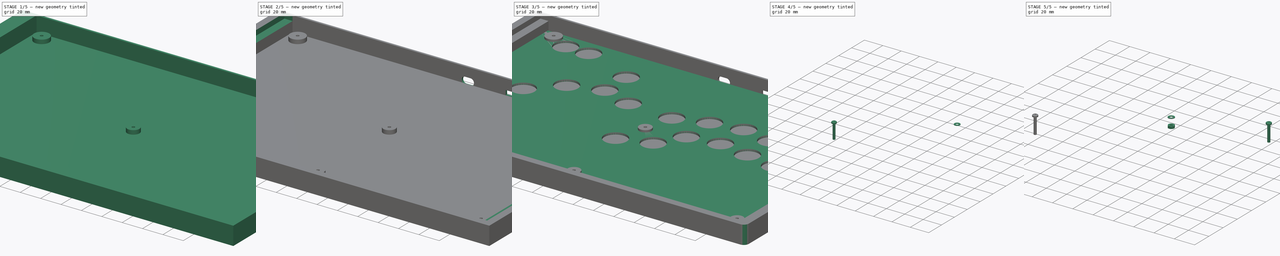
[diagram: build sequence overview — one tinted view per stage of 5, left to right]
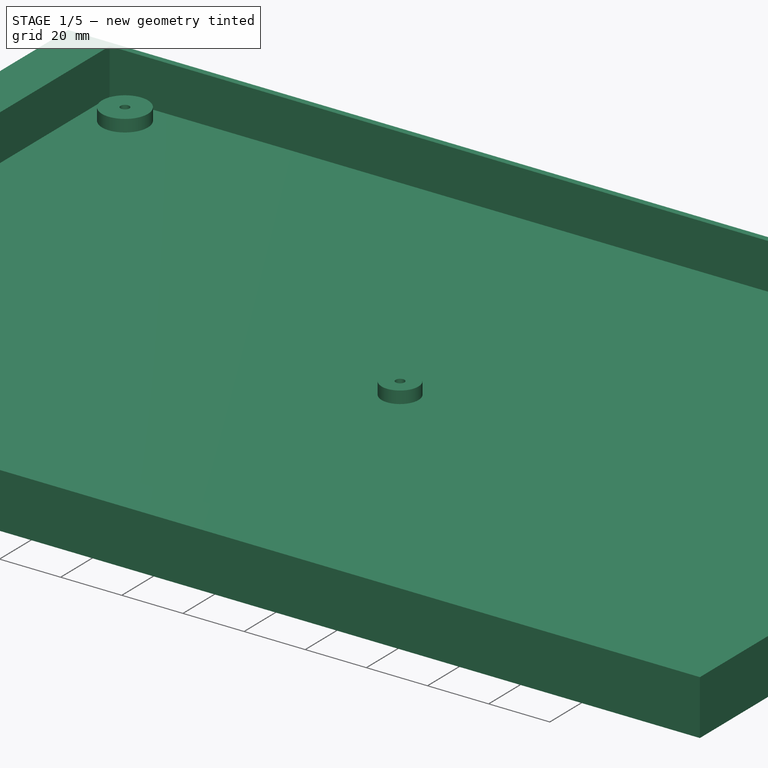
[diagram: stage 1 of 5 — iso view after this stage's code; geometry added in this stage tinted green]
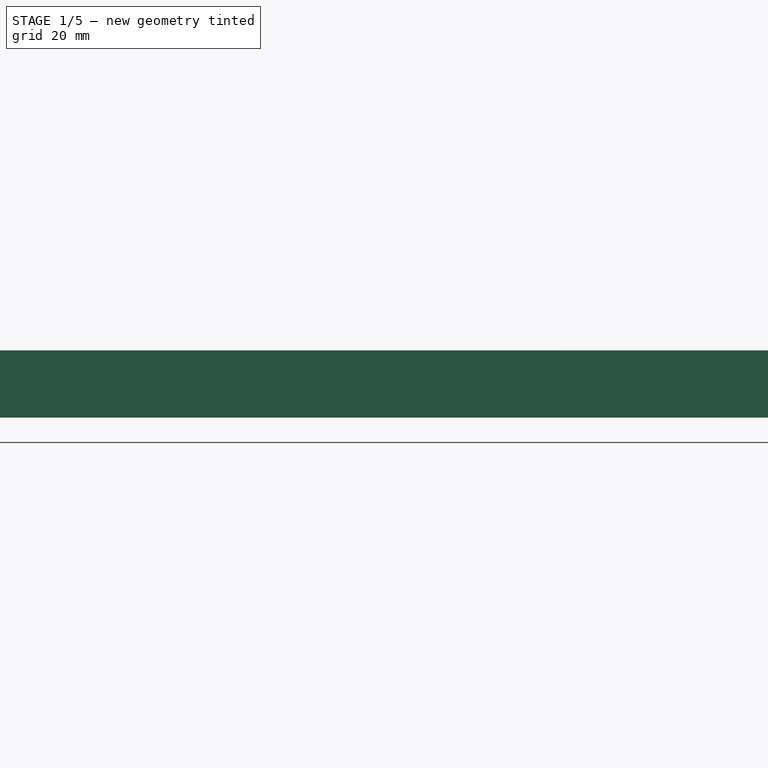
[diagram: stage 1 of 5 — front view after this stage's code; geometry added in this stage tinted green]
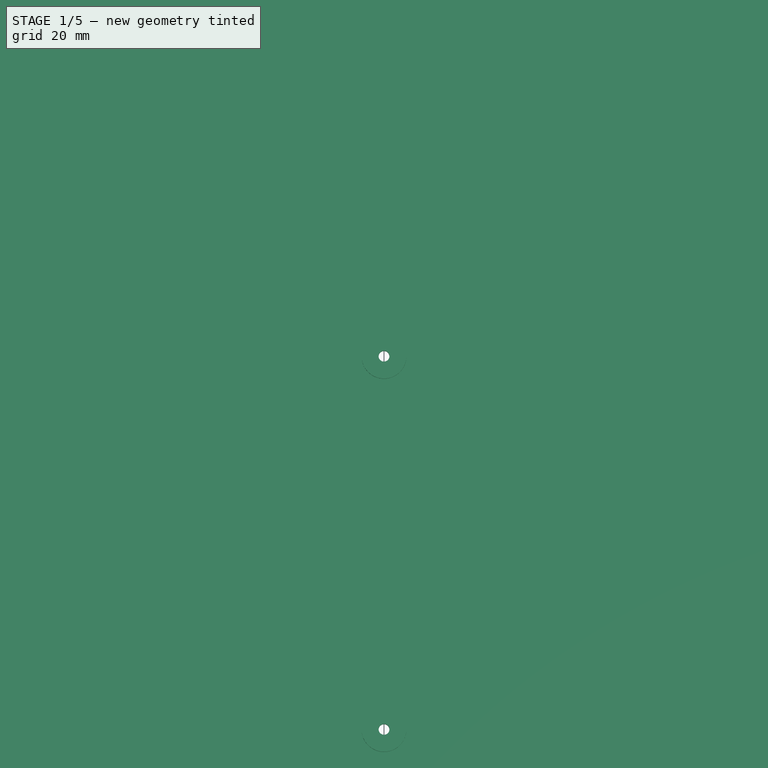
[diagram: stage 1 of 5 — top view after this stage's code; geometry added in this stage tinted green]
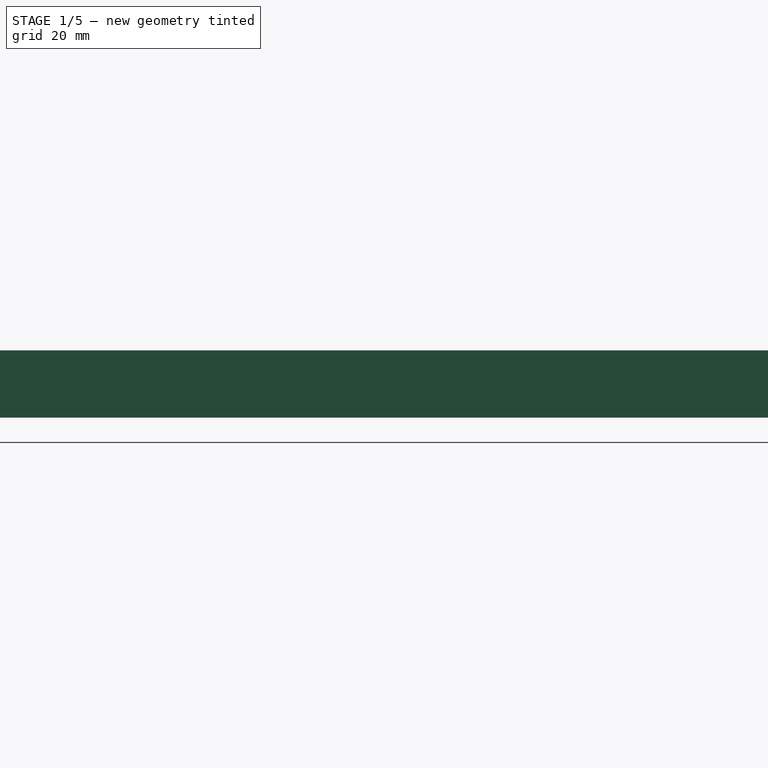
[diagram: stage 1 of 5 — right view after this stage's code; geometry added in this stage tinted green]
FCSTD DOCUMENT  (FreeCAD 0.21R33771 (Git))
Label: UdongCase
License: All rights reserved
LicenseURL: http://en.wikipedia.org/wiki/All_rights_reserved
objects: Sketcher::SketchObject×14, App::Part×10, Part::Feature×8, Part::FeaturePython×7, PartDesign::Hole×5, PartDesign::Pocket×4, App::MeasureDistance×4, PartDesign::Pad×3, PartDesign::CoordinateSystem×3, App::DocumentObjectGroup×3, PartDesign::Body×2, Spreadsheet::Sheet×1, App::FeaturePython×1, PartDesign::Fillet×1
note: 60 computed .brp shape members not serialized (recipe doc carries the construction recipe); baked Part::Feature solids carry a one-line shape summary decoded from their .brp

FEATURE [Sketcher::SketchObject] Sketch
  FullyConstrained = true
  expr: Constraints[4] = Spreadsheet.box_width
  expr: Constraints[5] = Spreadsheet.box_height
  expr: Constraints[7] = Spreadsheet.usb_wall_thickness
  sketch-geometry (5):
    g0: LineSegment StartX=-187 StartY=2 StartZ=0 EndX=187 EndY=2 EndZ=0
    g1: LineSegment StartX=187 StartY=2 StartZ=0 EndX=187 EndY=-237 EndZ=0
    g2: LineSegment StartX=187 StartY=-237 StartZ=0 EndX=-187 EndY=-237 EndZ=0
    g3: LineSegment StartX=-187 StartY=-237 StartZ=0 EndX=-187 EndY=2 EndZ=0
    g4: GeomPoint X=0 Y=2 Z=0
  constraints (13):
    c: Coincident(g0,g1)
    c: Coincident(g1,g2)
    c: Coincident(g2,g3)
    c: Coincident(g3,g0)
    c: DistanceX(g0,g0) = 374
    c: DistanceY(g1,g1) = 239
    c: PointOnObject(g4,g-2)
    c: DistanceY(g-1,g4) = 2
    c: Symmetric(g0,g0,g4)
    c: Vertical(g3)
    c: Vertical(g1)
    c: Horizontal(g0)
    c: Horizontal(g2)
FEATURE [Spreadsheet::Sheet] Spreadsheet
  cells = A1='wall_thickness; B1(wall_thickness)==ceil_wall_thickness + ceil_holder_thickness; A2='usb_wall_thickness; B2(usb_wall_thickness)==$B$3 + $B$4; A3='usb_dump; B3==0.5 mm; A4='usb_mas_gap; B4==1.5 mm; A5='box_thickness; B5(box_thickness)==topplate_alt + ceil_thickness; A6='pcb_top_to_topplate_top; B6(pcb_top_to_topplate_top)==5 mm; C6='https://ae01.alicdn.com/kf/S6de507808860464e940a03270d6d7923Y.png; A7='pcb_thickness; B7(pcb_thickness)==1 mm; A8='bottom_space; B8(bottom_space)==4 mm; A9='ceil_wall_thickness; B9(ceil_wall_thickness)==7 mm; A10='ceil_holder_thickness; B10(ceil_holder_thickness)==8 mm; A11='pcb_width; B11(pcb_width)==344 mm; A12='pcb_height; B12(pcb_height)==222 mm; A13='box_width; B13(box_width)==pcb_width + wall_thickness * 2; A14='box_height; B14(box_height)==pcb_height + wall_thickness + usb_wall_thickness; A15='box_bottom_thickness; B15(box_bottom_thickness)==3 mm; A16='fillet_phi; B16(fillet_phi)==3 mm; A17='fillet_addition; B17(fillet_addition)==B$16 - B$16 / sqrt(2); A18='fillet_radius; B18(fillet_radius)==B16 / 2; A19='M2_5_hole_phi; B19(M2_5_hole_phi)==2.8 mm; A20='mounting_phi; B20(mounting_phi)==12 mm; A21='bottom_to_pcb_bottom; B21(bottom_to_pcb_bottom)==box_bottom_thickness + bottom_space; A22='bottom_to_top_plate_bottom; B22(bottom_to_top_plate_bottom)==bottom_to_pcb_bottom + pcb_thickness + pcb_top_to_topplate_top - topplate_thickness; A23='topplate_thickness; B23(topplate_thickness)==1.6 mm; A24='pcb_top_to_ceil_top; B24(pcb_top_to_ceil_top)==13.7 mm; C24='Distance between the top of button and the bottom of switch; A25='ceil_thickness; B25(ceil_thickness)==5 mm; A26='topplate_alt; B26(topplate_alt)==box_bottom_thickness + bottom_space + pcb_thickness + pcb_top_to_topplate_top; A27='ceil_width; B27(ceil_width)==box_width - ceil_wall_thickness * 2; A28='ceil_height; B28(ceil_height)==pcb_height + ceil_holder_thickness; A29='nut_hole_thickness; B29(nut_hole_thickness)==3 mm; C29=' nut thickness is 2mm; A30='M2_5_nut_width; B30(M2_5_nut_width)==5.2 mm; C30='5mm + margin; A31='ceil_margin; B31(ceil_margin)==1 mm; A32='M2_5_head_phi; B32(M2_5_head_phi)==6.5 mm; C32='4.5mm + margin, washer's phi = 6.0; A33='switch_phi; B33(switch_phi)==22 mm; A34='shallow_hole_thickness; B34(shallow_hole_thickness)==1.5 mm
FEATURE [PartDesign::Pad] Pad
  Direction = (0,0,1)
  Length = 18
  Length2 = 10
  Profile = -> Sketch
  ReferenceAxis = -> Sketch [N_Axis]
  Type = 0
  expr: Length = Spreadsheet.box_thickness
FEATURE [Sketcher::SketchObject] Sketch001
  FullyConstrained = true
  MapMode = 5
  Placement = pos=(0,0,18) rot=(0,0,1;0rad)
  Support = -> [Pad]
  expr: Constraints[8] = Spreadsheet.pcb_height
  expr: Constraints[9] = Spreadsheet.pcb_width
  sketch-geometry (4):
    g0: LineSegment StartX=-172 StartY=0 StartZ=0 EndX=172 EndY=0 EndZ=0
    g1: LineSegment StartX=172 StartY=0 StartZ=0 EndX=172 EndY=-222 EndZ=0
    g2: LineSegment StartX=172 StartY=-222 StartZ=0 EndX=-172 EndY=-222 EndZ=0
    g3: LineSegment StartX=-172 StartY=-222 StartZ=0 EndX=-172 EndY=0 EndZ=0
  constraints (11):
    c: Coincident(g0,g1)
    c: Coincident(g1,g2)
    c: Coincident(g2,g3)
    c: Coincident(g3,g0)
    c: Horizontal(g0)
    c: Horizontal(g2)
    c: Vertical(g1)
    c: Vertical(g3)
    c: DistanceY(g1,g1) = 222
    c: DistanceX(g2,g2) = 344
    c: Symmetric(g0,g0,g-1)
FEATURE [PartDesign::Pocket] Pocket
  BaseFeature = -> Pad
  Direction = (0,0,-1)
  Length = 15
  Length2 = 5
  Profile = -> Sketch001
  ReferenceAxis = -> Sketch001 [N_Axis]
  Type = 0
  expr: Length = Spreadsheet.box_thickness - Spreadsheet.box_bottom_thickness
FEATURE [Sketcher::SketchObject] Sketch002
  FullyConstrained = true
  MapMode = 5
  Placement = pos=(0,0,3) rot=(0,0,1;0rad)
  Support = -> [Pocket]
  expr: Constraints[11] = Spreadsheet.mounting_phi
  expr: Constraints[2] = Spreadsheet.mounting_phi
  expr: Constraints[3] = Spreadsheet.mounting_phi
  expr: Constraints[8] = Spreadsheet.mounting_phi
  sketch-geometry (6):
    g0: Circle CenterX=0 CenterY=-110 CenterZ=0 NormalX=0 NormalY=0 NormalZ=1 AngleXU=0 Radius=6
    g1: Circle CenterX=160 CenterY=-10 CenterZ=0 NormalX=0 NormalY=0 NormalZ=1 AngleXU=0 Radius=6
    g2: Circle CenterX=160 CenterY=-210 CenterZ=0 NormalX=0 NormalY=0 NormalZ=1 AngleXU=0 Radius=6
    g3: Circle CenterX=0 CenterY=-210 CenterZ=0 NormalX=0 NormalY=0 NormalZ=1 AngleXU=0 Radius=6
    g4: Circle CenterX=-160 CenterY=-10 CenterZ=0 NormalX=0 NormalY=0 NormalZ=1 AngleXU=0 Radius=7.5
    g5: Circle CenterX=-160 CenterY=-210 CenterZ=0 NormalX=0 NormalY=0 NormalZ=1 AngleXU=0 Radius=7.5
  constraints (16):
    c: PointOnObject(g0,g-2)
    c: DistanceY(g0) = -110
    c: Diameter(g0) = 12
    c: Diameter(g1) = 12
    c: DistanceY(g1) = -10
    c: DistanceX(g1) = 160
    c: DistanceX(g2) = 160
    c: DistanceY(g2) = -210
    c: Diameter(g2) = 12
    c: DistanceX(g3) = 0
    c: Horizontal(g3,g2)
    c: Diameter(g3) = 12
    c: Diameter(g4) = 15
    c: Diameter(g5) = 15
    c: Symmetric(g2,g5,g-2)
    c: Symmetric(g4,g1,g-2)
FEATURE [PartDesign::CoordinateSystem] Local_CS_1531
  AttacherType = Attacher::AttachEngine3D
  MapMode = 2
  Support = -> [X_Axis001]
FEATURE [Part::Feature] Pcb_1531
  Placement = pos=(-210,40,0) rot=(0,0,1;0rad)
  shape: bbox 340 x 220 x 1 mm, 130 faces (baked)
FEATURE [Sketcher::SketchObject] PCB_Sketch_1531
  FullyConstrained = false
  sketch-geometry (4):
    g0: LineSegment StartX=-170 StartY=0 StartZ=0 EndX=170 EndY=0 EndZ=0
    g1: LineSegment StartX=170 StartY=0 StartZ=0 EndX=170 EndY=-220 EndZ=0
    g2: LineSegment StartX=170 StartY=-220 StartZ=0 EndX=-170 EndY=-220 EndZ=0
    g3: LineSegment StartX=-170 StartY=-220 StartZ=0 EndX=-170 EndY=0 EndZ=0
  constraints (4):
    c: Coincident(g2,g3)
    c: Coincident(g0,g3)
    c: Coincident(g1,g2)
    c: Coincident(g0,g1)
FEATURE [App::Part] Board_Geoms_1531
  Group = -> [Pcb_1531,PCB_Sketch_1531]
  Origin = -> Origin002
FEATURE [Part::Feature] Part__Feature  label="ConPins"
  shape: bbox 6 x 4.32 x 0.61 mm, 70 faces (baked)
FEATURE [Part::Feature] Part__Feature001  label="PcbPins"
  shape: bbox 6.9 x 0.99 x 0.3 mm, 122 faces (baked)
FEATURE [Part::Feature] Part__Feature002  label="Mold"
  shape: bbox 8.95 x 6.5 x 3.731 mm, 55 faces (baked)
FEATURE [Part::Feature] Part__Feature003  label="Frame"
  shape: bbox 8.95 x 7.3 x 4.2 mm, 323 faces (baked)
FEATURE [App::Part] HRO_TYPE_C_31_M_12  label="J1_HRO_TYPE_C_31_M_12_6a9f92c07a2""
  Group = -> [Part__Feature,Part__Feature001,Part__Feature002,Part__Feature003]
  Origin = -> Origin008
  Placement = pos=(4.494,0.55,0) rot=(0,0,1;3.14159rad)
FEATURE [Part::Feature] Shape010  label="J3_PinSocket_1x03_P254mm_Horizontal_5e44ceccd07""
  Placement = pos=(-39.5,-10.5,0) rot=(0,0,-1;1.5708rad)
  shape: bbox 7.62 x 10.13 x 5.84 mm, 115 faces (baked)
FEATURE [Part::Feature] Shape014  label="J2_SM03B-SRSS_0813409b6cc""
  Placement = pos=(-56.5,-4.125,-0.25) rot=(0,0.707107,0.707107;3.14159rad)
  shape: bbox 5 x 4.95 x 2.96 mm, 78 faces (baked)
FEATURE [App::Part] Top_1531
  Group = -> [HRO_TYPE_C_31_M_12,Shape010,Shape014]
  Origin = -> Origin004
FEATURE [App::Part] Step_Models_1531
  Group = -> [Top_1531]
  Origin = -> Origin003
FEATURE [App::Part] Board_1531  label="mainboard"
  Group = -> [Local_CS_1531,Board_Geoms_1531,Step_Models_1531]
  Origin = -> Origin001
  Placement = pos=(-7e-16,0,7) rot=(0,1,0;3.14159rad)
  expr: .Placement.Base.z = Spreadsheet.bottom_to_pcb_bottom
FEATURE [PartDesign::Pad] Pad001  label="Mounting"
  BaseFeature = -> Pocket
  Direction = (0,0,1)
  Length = 4
  Length2 = 10
  Profile = -> Sketch002
  ReferenceAxis = -> Sketch002 [N_Axis]
  Type = 0
  expr: Length = Spreadsheet.bottom_space
FEATURE [Sketcher::SketchObject] Sketch003
  FullyConstrained = true
  MapMode = 5
  Placement = pos=(0,0,0) rot=(1,0,0;3.14159rad)
  Support = -> [Pad001]
  expr: Constraints[10] = Spreadsheet.M2_5_hole_phi
  expr: Constraints[11] = Spreadsheet.M2_5_hole_phi
  expr: Constraints[13] = Spreadsheet.M2_5_hole_phi
  expr: Constraints[17] = Spreadsheet.M2_5_hole_phi
  expr: Constraints[2] = Spreadsheet.M2_5_hole_phi
  expr: Constraints[5] = Spreadsheet.M2_5_hole_phi
  sketch-geometry (6):
    g0: Circle CenterX=0 CenterY=110 CenterZ=0 NormalX=0 NormalY=0 NormalZ=1 AngleXU=0 Radius=1.4
    g1: Circle CenterX=0 CenterY=210 CenterZ=0 NormalX=0 NormalY=0 NormalZ=1 AngleXU=0 Radius=1.4
    g2: Circle CenterX=-160 CenterY=10 CenterZ=0 NormalX=0 NormalY=0 NormalZ=1 AngleXU=0 Radius=1.4
    g3: Circle CenterX=-160 CenterY=210 CenterZ=0 NormalX=0 NormalY=0 NormalZ=1 AngleXU=0 Radius=1.4
    g4: Circle CenterX=160 CenterY=10 CenterZ=0 NormalX=0 NormalY=0 NormalZ=1 AngleXU=0 Radius=1.4
    g5: Circle CenterX=160 CenterY=210 CenterZ=0 NormalX=0 NormalY=0 NormalZ=1 AngleXU=0 Radius=1.4
  constraints (18):
    c: PointOnObject(g0,g-2)
    c: DistanceY(g0) = 110
    c: Diameter(g0) = 2.8
    c: PointOnObject(g1,g-2)
    c: DistanceY(g1) = 210
    c: Diameter(g1) = 2.8
    c: DistanceY(g2) = 10
    c: DistanceX(g2) = -160
    c: Vertical(g3,g2)
    c: Horizontal(g3,g1)
    c: Diameter(g3) = 2.8
    c: Diameter(g2) = 2.8
    c: Horizontal(g2,g4)
    c: Diameter(g4) = 2.8
    c: Vertical(g5,g4)
    c: DistanceX(g4) = 160
    c: Horizontal(g5,g1)
    c: Diameter(g5) = 2.8
FEATURE [PartDesign::Hole] Hole  label="BoltHole"
  BaseFeature = -> Pad001
  CustomThreadClearance = 0
  Depth = 25
  DepthType = 0
  Diameter = 2.9
  DrillForDepth = false
  DrillPoint = 1
  DrillPointAngle = 118
  HoleCutCountersinkAngle = 90
  HoleCutCustomValues = false
  HoleCutDepth = 0
  HoleCutDiameter = 6.1
  HoleCutType = 0
  ModelThread = false
  Profile = -> Sketch003
  Tapered = false
  TaperedAngle = 90
  ThreadClass = 0
  ThreadDepth = 25
  ThreadDepthType = 0
  ThreadDirection = 0
  ThreadFit = 0
  ThreadSize = 8
  ThreadType = 1
  Threaded = false
  UseCustomThreadClearance = false
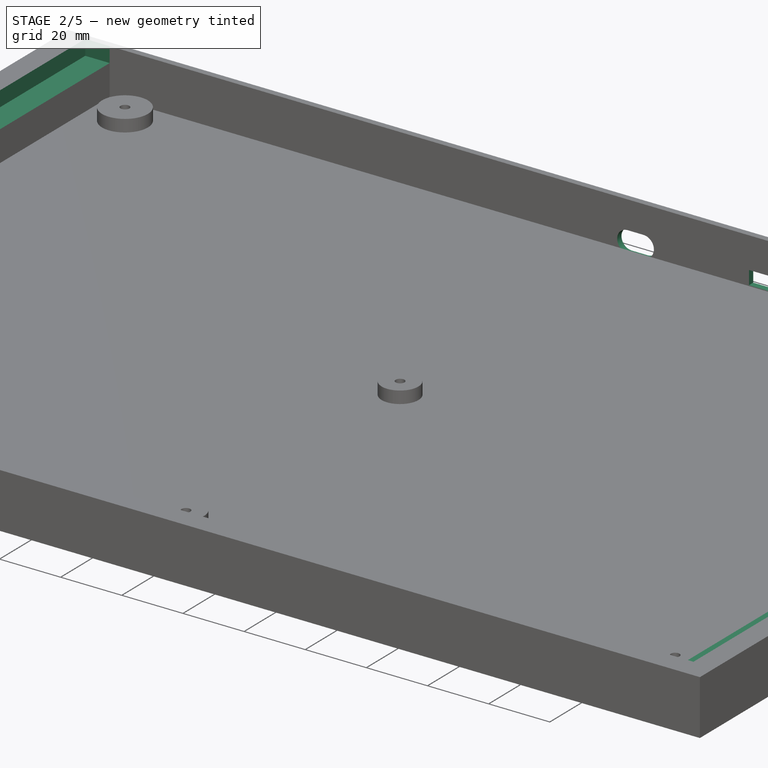
[diagram: stage 2 of 5 — iso view after this stage's code; geometry added in this stage tinted green]
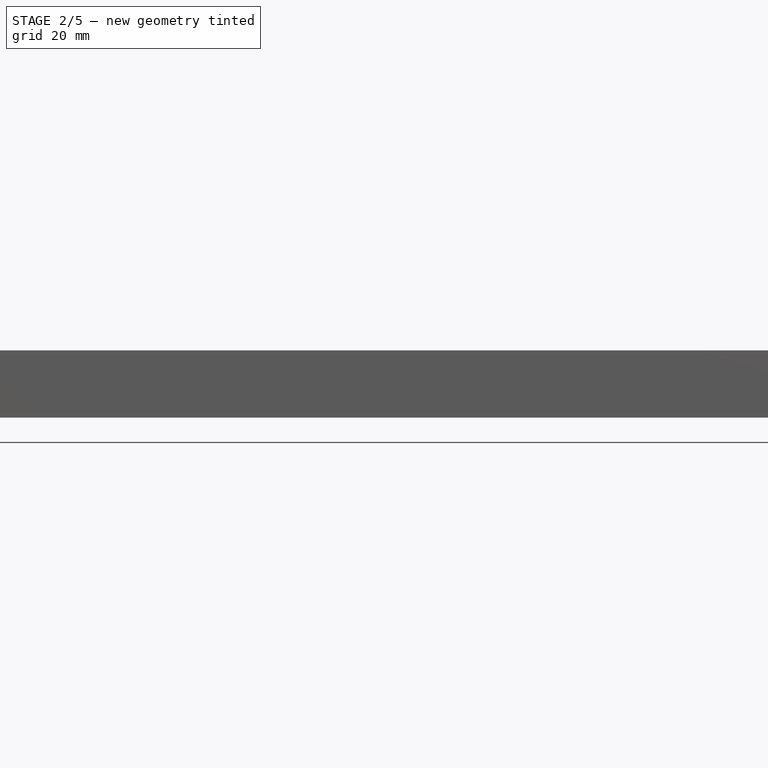
[diagram: stage 2 of 5 — front view after this stage's code; geometry added in this stage tinted green]
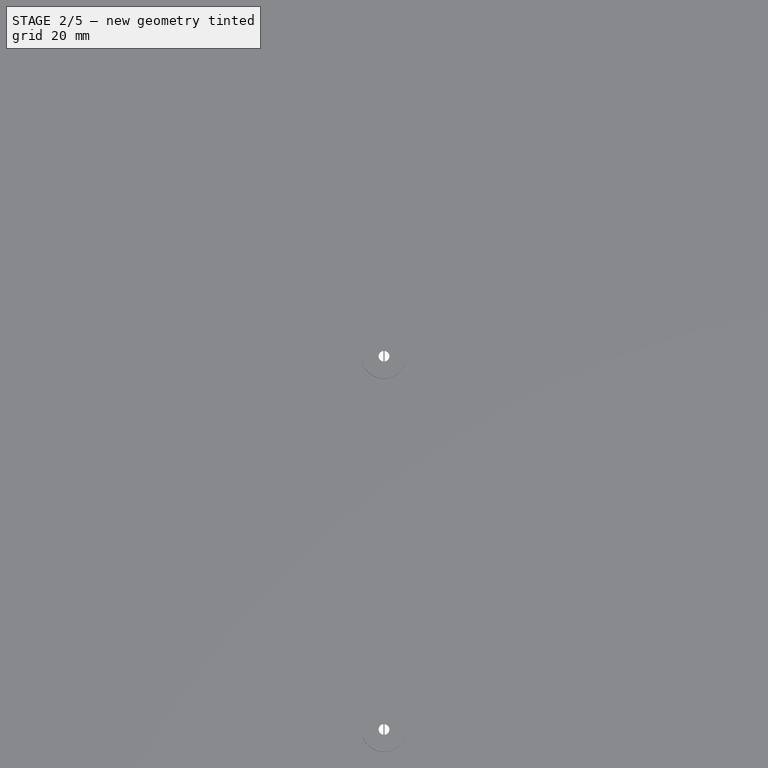
[diagram: stage 2 of 5 — top view after this stage's code; geometry added in this stage tinted green]
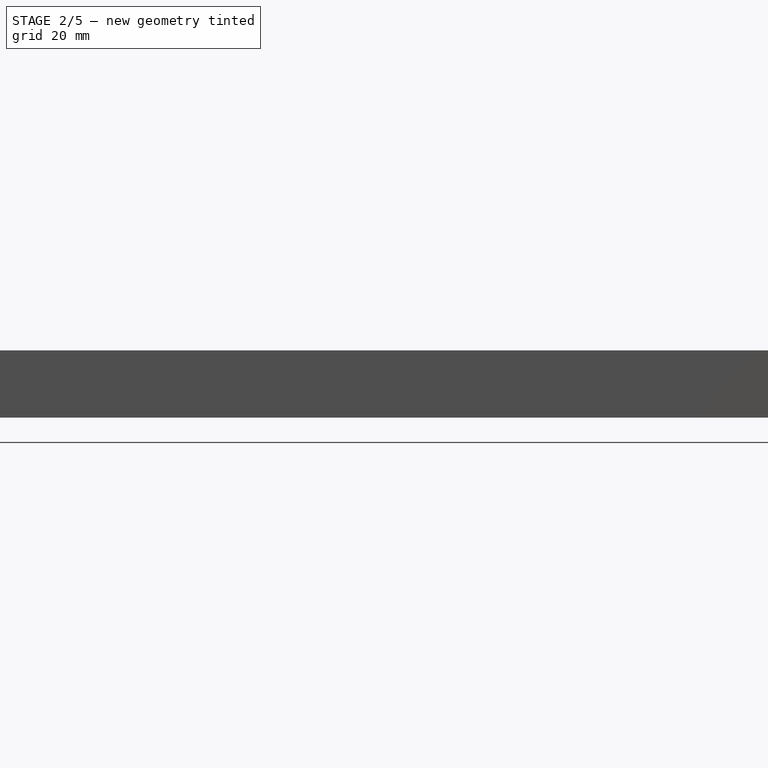
[diagram: stage 2 of 5 — right view after this stage's code; geometry added in this stage tinted green]
FEATURE [Sketcher::SketchObject] Sketch004
  FullyConstrained = true
  MapMode = 5
  Placement = pos=(0,0,0) rot=(1,0,0;3.14159rad)
  Support = -> [Hole]
  expr: Constraints[103] = Spreadsheet.M2_5_nut_width
  expr: Constraints[125] = Spreadsheet.M2_5_nut_width
  expr: Constraints[20] = Spreadsheet.M2_5_nut_width
  expr: Constraints[41] = Spreadsheet.M2_5_nut_width
  expr: Constraints[62] = Spreadsheet.M2_5_nut_width
  expr: Constraints[83] = Spreadsheet.M2_5_nut_width
  sketch-geometry (42):
    g0: LineSegment StartX=2.6 StartY=111.501 StartZ=0 EndX=0 EndY=113.002 EndZ=0
    g1: LineSegment StartX=0 StartY=113.002 StartZ=0 EndX=-2.6 EndY=111.501 EndZ=0
    g2: LineSegment StartX=-2.6 StartY=111.501 StartZ=0 EndX=-2.6 EndY=108.499 EndZ=0
    g3: LineSegment StartX=-2.6 StartY=108.499 StartZ=0 EndX=-1.5796e-12 EndY=106.998 EndZ=0
    g4: LineSegment StartX=-1.5796e-12 StartY=106.998 StartZ=0 EndX=2.6 EndY=108.499 EndZ=0
    g5: LineSegment StartX=2.6 StartY=108.499 StartZ=0 EndX=2.6 EndY=111.501 EndZ=0
    g6: Circle CenterX=0 CenterY=110 CenterZ=0 NormalX=0 NormalY=0 NormalZ=1 AngleXU=0 Radius=3.00222
    g7: LineSegment StartX=2.6 StartY=208.499 StartZ=0 EndX=2.6 EndY=211.501 EndZ=0
    g8: LineSegment StartX=2.6 StartY=211.501 StartZ=0 EndX=0 EndY=213.002 EndZ=0
    g9: LineSegment StartX=0 StartY=213.002 StartZ=0 EndX=-2.6 EndY=211.501 EndZ=0
    g10: LineSegment StartX=-2.6 StartY=211.501 StartZ=0 EndX=-2.6 EndY=208.499 EndZ=0
    g11: LineSegment StartX=-2.6 StartY=208.499 StartZ=0 EndX=4e-16 EndY=206.998 EndZ=0
    g12: LineSegment StartX=4e-16 StartY=206.998 StartZ=0 EndX=2.6 EndY=208.499 EndZ=0
    g13: Circle CenterX=0 CenterY=210 CenterZ=0 NormalX=0 NormalY=0 NormalZ=1 AngleXU=0 Radius=3.00222
    g14: LineSegment StartX=162.6 StartY=208.499 StartZ=0 EndX=162.6 EndY=211.501 EndZ=0
    g15: LineSegment StartX=162.6 StartY=211.501 StartZ=0 EndX=160 EndY=213.002 EndZ=0
    g16: LineSegment StartX=160 StartY=213.002 StartZ=0 EndX=157.4 EndY=211.501 EndZ=0
    g17: LineSegment StartX=157.4 StartY=211.501 StartZ=0 EndX=157.4 EndY=208.499 EndZ=0
    g18: LineSegment StartX=157.4 StartY=208.499 StartZ=0 EndX=160 EndY=206.998 EndZ=0
    g19: LineSegment StartX=160 StartY=206.998 StartZ=0 EndX=162.6 EndY=208.499 EndZ=0
    g20: Circle CenterX=160 CenterY=210 CenterZ=0 NormalX=0 NormalY=0 NormalZ=1 AngleXU=0 Radius=3.00222
    g21: LineSegment StartX=162.6 StartY=8.49889 StartZ=0 EndX=162.6 EndY=11.5011 EndZ=0
    g22: LineSegment StartX=162.6 StartY=11.5011 StartZ=0 EndX=160 EndY=13.0022 EndZ=0
    g23: LineSegment StartX=160 StartY=13.0022 StartZ=0 EndX=157.4 EndY=11.5011 EndZ=0
    g24: LineSegment StartX=157.4 StartY=11.5011 StartZ=0 EndX=157.4 EndY=8.49889 EndZ=0
    g25: LineSegment StartX=157.4 StartY=8.49889 StartZ=0 EndX=160 EndY=6.99778 EndZ=0
    g26: LineSegment StartX=160 StartY=6.99778 StartZ=0 EndX=162.6 EndY=8.49889 EndZ=0
    g27: Circle CenterX=160 CenterY=10 CenterZ=0 NormalX=0 NormalY=0 NormalZ=1 AngleXU=0 Radius=3.00222
    g28: LineSegment StartX=-157.4 StartY=8.49889 StartZ=0 EndX=-157.4 EndY=11.5011 EndZ=0
    g29: LineSegment StartX=-157.4 StartY=11.5011 StartZ=0 EndX=-160 EndY=13.0022 EndZ=0
    g30: LineSegment StartX=-160 StartY=13.0022 StartZ=0 EndX=-162.6 EndY=11.5011 EndZ=0
    g31: LineSegment StartX=-162.6 StartY=11.5011 StartZ=0 EndX=-162.6 EndY=8.49889 EndZ=0
    g32: LineSegment StartX=-162.6 StartY=8.49889 StartZ=0 EndX=-160 EndY=6.99778 EndZ=0
    g33: LineSegment StartX=-160 StartY=6.99778 StartZ=0 EndX=-157.4 EndY=8.49889 EndZ=0
    g34: Circle CenterX=-160 CenterY=10 CenterZ=0 NormalX=0 NormalY=0 NormalZ=1 AngleXU=0 Radius=3.00222
    g35: LineSegment StartX=-157.4 StartY=208.499 StartZ=0 EndX=-157.4 EndY=211.501 EndZ=0
    g36: LineSegment StartX=-157.4 StartY=211.501 StartZ=0 EndX=-160 EndY=213.002 EndZ=0
    g37: LineSegment StartX=-160 StartY=213.002 StartZ=0 EndX=-162.6 EndY=211.501 EndZ=0
    g38: LineSegment StartX=-162.6 StartY=211.501 StartZ=0 EndX=-162.6 EndY=208.499 EndZ=0
    g39: LineSegment StartX=-162.6 StartY=208.499 StartZ=0 EndX=-160 EndY=206.998 EndZ=0
    g40: LineSegment StartX=-160 StartY=206.998 StartZ=0 EndX=-157.4 EndY=208.499 EndZ=0
    g41: Circle CenterX=-160 CenterY=210 CenterZ=0 NormalX=0 NormalY=0 NormalZ=1 AngleXU=0 Radius=3.00222
  constraints (102):
    c: Coincident(g0,g1)
    c: Coincident(g1,g2)
    c: Coincident(g2,g3)
    c: Coincident(g3,g4)
    c: Coincident(g4,g5)
    c: Coincident(g5,g0)
    c: Equal(g0, g1-g5) x5
    c: PointOnObject(g0,g6)
    c: PointOnObject(g1,g6)
    c: PointOnObject(g2,g6)
    c: PointOnObject(g3,g6)
    c: PointOnObject(g4,g6)
    c: PointOnObject(g5,g6)
    c: DistanceX(g6) = 0
    c: DistanceY(g6) = 110
    c: PointOnObject(g0,g-2)
    c: Distance(g1,g0) = 5.2
    c: Coincident(g7,g8)
    c: Coincident(g8,g9)
    c: Coincident(g9,g10)
    c: Coincident(g10,g11)
    c: Coincident(g11,g12)
    c: Coincident(g12,g7)
    c: Equal(g7, g8-g12) x5
    c: PointOnObject(g7,g13)
    c: PointOnObject(g8,g13)
    c: PointOnObject(g9,g13)
    c: PointOnObject(g10,g13)
    c: PointOnObject(g11,g13)
    c: PointOnObject(g12,g13)
    c: PointOnObject(g13,g-2)
    c: PointOnObject(g8,g-2)
    c: DistanceY(g13) = 210
    c: DistanceX(g9,g7) = 5.2
    c: Coincident(g14,g15)
    c: Coincident(g15,g16)
    c: Coincident(g16,g17)
    c: Coincident(g17,g18)
    c: Coincident(g18,g19)
    c: Coincident(g19,g14)
    c: Equal(g14, g15-g19) x5
    c: PointOnObject(g14,g20)
    c: PointOnObject(g15,g20)
    c: PointOnObject(g16,g20)
    c: PointOnObject(g17,g20)
    c: PointOnObject(g18,g20)
    c: PointOnObject(g19,g20)
    c: DistanceX(g20) = 160
    c: DistanceY(g20) = 210
    c: Vertical(g15,g18)
    c: Distance(g16,g14) = 5.2
    c: Coincident(g21,g22)
    c: Coincident(g22,g23)
    c: Coincident(g23,g24)
    c: Coincident(g24,g25)
    c: Coincident(g25,g26)
    c: Coincident(g26,g21)
    c: Equal(g21, g22-g26) x5
    c: PointOnObject(g21,g27)
    c: PointOnObject(g22,g27)
    c: PointOnObject(g23,g27)
    c: PointOnObject(g24,g27)
    c: PointOnObject(g25,g27)
    c: PointOnObject(g26,g27)
    c: Vertical(g20,g27)
    c: Vertical(g22,g25)
    c: DistanceY(g27) = 10
    c: DistanceX(g23,g21) = 5.2
    c: Coincident(g28,g29)
    c: Coincident(g29,g30)
    c: Coincident(g30,g31)
    c: Coincident(g31,g32)
    c: Coincident(g32,g33)
    c: Coincident(g33,g28)
    c: Equal(g28, g29-g33) x5
    c: PointOnObject(g28,g34)
    c: PointOnObject(g29,g34)
    c: PointOnObject(g30,g34)
    c: PointOnObject(g31,g34)
    c: PointOnObject(g32,g34)
    c: PointOnObject(g33,g34)
    c: Horizontal(g27,g34)
    c: Vertical(g32,g29)
    c: DistanceX(g30,g28) = 5.2
    c: DistanceX(g34) = -160
    c: Coincident(g35,g36)
    c: Coincident(g36,g37)
    c: Coincident(g37,g38)
    c: Coincident(g38,g39)
    c: Coincident(g39,g40)
    c: Coincident(g40,g35)
    c: Equal(g35, g36-g40) x5
    c: PointOnObject(g35,g41)
    c: PointOnObject(g36,g41)
    c: PointOnObject(g37,g41)
    c: PointOnObject(g38,g41)
    c: PointOnObject(g39,g41)
    c: PointOnObject(g40,g41)
    c: Horizontal(g41,g20)
    c: Vertical(g41,g34)
    c: Vertical(g39,g36)
    c: DistanceX(g37,g35) = 5.2
FEATURE [PartDesign::Pocket] Pocket001  label="NutHoles"
  BaseFeature = -> Hole
  Direction = (0,0,1)
  Length = 4.5
  Length2 = 5
  Profile = -> Sketch004
  ReferenceAxis = -> Sketch004 [N_Axis]
  Type = 0
  expr: Length = Spreadsheet.nut_hole_thickness + Spreadsheet.shallow_hole_thickness
FEATURE [Sketcher::SketchObject] Sketch005
  FullyConstrained = true
  MapMode = 5
  Placement = pos=(0,0,18) rot=(0,0,1;0rad)
  Support = -> [Pocket001]
  expr: Constraints[10] = Spreadsheet.ceil_width
  expr: Constraints[9] = Spreadsheet.ceil_height
  sketch-geometry (4):
    g0: LineSegment StartX=-180 StartY=0 StartZ=0 EndX=180 EndY=0 EndZ=0
    g1: LineSegment StartX=180 StartY=0 StartZ=0 EndX=180 EndY=-230 EndZ=0
    g2: LineSegment StartX=180 StartY=-230 StartZ=0 EndX=-180 EndY=-230 EndZ=0
    g3: LineSegment StartX=-180 StartY=-230 StartZ=0 EndX=-180 EndY=0 EndZ=0
  constraints (11):
    c: Coincident(g0,g1)
    c: Coincident(g1,g2)
    c: Coincident(g2,g3)
    c: Coincident(g3,g0)
    c: Horizontal(g0)
    c: Horizontal(g2)
    c: Vertical(g1)
    c: Vertical(g3)
    c: Symmetric(g0,g0,g-1)
    c: DistanceY(g1,g1) = 230
    c: DistanceX(g2,g2) = 360
FEATURE [PartDesign::Pocket] Pocket002  label="CeilSpace"
  BaseFeature = -> Pocket001
  Direction = (0,0,-1)
  Length = 5
  Length2 = 5
  Profile = -> Sketch005
  ReferenceAxis = -> Sketch005 [N_Axis]
  Type = 0
  expr: Length = Spreadsheet.ceil_thickness
FEATURE [PartDesign::CoordinateSystem] Local_CS_f4e1
  AttacherType = Attacher::AttachEngine3D
  MapMode = 2
  Support = -> [X_Axis009]
FEATURE [Part::Feature] Pcb_f4e1
  Placement = pos=(-187.15,17.05,0) rot=(0,0,1;0rad)
  shape: bbox 340 x 220 x 1.6 mm, 160 faces (baked)
FEATURE [Sketcher::SketchObject] PCB_Sketch_f4e1
  FullyConstrained = false
  sketch-geometry (4):
    g0: LineSegment StartX=-170 StartY=0 StartZ=0 EndX=170 EndY=0 EndZ=0
    g1: LineSegment StartX=170 StartY=0 StartZ=0 EndX=170 EndY=-220 EndZ=0
    g2: LineSegment StartX=170 StartY=-220 StartZ=0 EndX=-170 EndY=-220 EndZ=0
    g3: LineSegment StartX=-170 StartY=-220 StartZ=0 EndX=-170 EndY=0 EndZ=0
  constraints (4):
    c: Coincident(g2,g3)
    c: Coincident(g0,g3)
    c: Coincident(g1,g2)
    c: Coincident(g0,g1)
FEATURE [App::Part] Board_Geoms_f4e1
  Group = -> [Pcb_f4e1,PCB_Sketch_f4e1]
  Origin = -> Origin010
FEATURE [App::Part] Step_Models_f4e1
  Origin = -> Origin011
FEATURE [App::Part] Board_f4e1  label="mainboard_top_plate"
  Group = -> [Local_CS_f4e1,Board_Geoms_f4e1,Step_Models_f4e1]
  Origin = -> Origin009
  Placement = pos=(-2.2e-15,0,11.4) rot=(0,1,0;3.14159rad)
  expr: .Placement.Base.z = Spreadsheet.topplate_alt - Spreadsheet.topplate_thickness
FEATURE [Sketcher::SketchObject] Sketch006
  FullyConstrained = true
  MapMode = 3
  Placement = pos=(0,0,0) rot=(1,0,0;1.5708rad)
  Support = -> [Pad]
  sketch-geometry (14):
    g0: ArcOfCircle CenterX=-2.6 CenterY=5.5 CenterZ=0 NormalX=0 NormalY=0 NormalZ=1 AngleXU=0 Radius=3.4 StartAngle=1.5708 EndAngle=4.71239
    g1: ArcOfCircle CenterX=2.6 CenterY=5.5 CenterZ=0 NormalX=0 NormalY=0 NormalZ=1 AngleXU=0 Radius=3.4 StartAngle=4.71239 EndAngle=7.85398
    g2: LineSegment StartX=-2.6 StartY=2.1 StartZ=0 EndX=2.6 EndY=2.1 EndZ=0
    g3: LineSegment StartX=2.6 StartY=8.9 StartZ=0 EndX=-2.6 EndY=8.9 EndZ=0
    g4: LineSegment StartX=52.55 StartY=7.8 StartZ=0 EndX=60.45 EndY=7.8 EndZ=0
    g5: LineSegment StartX=60.45 StartY=7.8 StartZ=0 EndX=60.45 EndY=3.2 EndZ=0
    g6: LineSegment StartX=60.45 StartY=3.2 StartZ=0 EndX=52.55 EndY=3.2 EndZ=0
    g7: LineSegment StartX=52.55 StartY=3.2 StartZ=0 EndX=52.55 EndY=7.8 EndZ=0
    g8: GeomPoint X=56.5 Y=5.5 Z=0
    g9: GeomPoint X=42 Y=5.5 Z=0
    g10: LineSegment StartX=37.1 StartY=7.75 StartZ=0 EndX=46.9 EndY=7.75 EndZ=0
    g11: LineSegment StartX=46.9 StartY=7.75 StartZ=0 EndX=46.9 EndY=3.25 EndZ=0
    g12: LineSegment StartX=46.9 StartY=3.25 StartZ=0 EndX=37.1 EndY=3.25 EndZ=0
    g13: LineSegment StartX=37.1 StartY=3.25 StartZ=0 EndX=37.1 EndY=7.75 EndZ=0
  constraints (35):
    c: Tangent(g0,g2) = -1.5708
    c: Tangent(g2,g1) = -1.5708
    c: Tangent(g1,g3) = -1.5708
    c: Tangent(g3,g0) = -1.5708
    c: Equal(g0,g1)
    c: Symmetric(g1,g0,g-2)
    c: DistanceY(g1) = 5.5
    c: Distance(g1,g1) = 3.4
    c: DistanceX(g0,g1) = 5.2
    c: Coincident(g4,g5)
    c: Coincident(g5,g6)
    c: Coincident(g6,g7)
    c: Coincident(g7,g4)
    c: Horizontal(g4)
    c: Horizontal(g6)
    c: Vertical(g5)
    c: Vertical(g7)
    c: Horizontal(g0,g8)
    c: Horizontal(g9,g8)
    c: DistanceX(g9) = 42
    c: DistanceX(g8) = 56.5
    c: Symmetric(g4,g5,g8)
    c: DistanceY(g5,g5) = 4.6
    c: DistanceX(g4,g4) = 7.9
    c: Coincident(g10,g11)
    c: Coincident(g11,g12)
    c: Coincident(g12,g13)
    c: Coincident(g13,g10)
    c: Horizontal(g10)
    c: Horizontal(g12)
    c: Vertical(g11)
    c: Vertical(g13)
    c: Symmetric(g12,g10,g9)
    c: DistanceY(g11,g11) = 4.5
    c: DistanceX(g10,g10) = 9.8
FEATURE [PartDesign::Pocket] Pocket003  label="USBHole"
  BaseFeature = -> Pocket002
  Direction = (0,1,-2e-16)
  Length = 2
  Length2 = 5
  Profile = -> Sketch006
  ReferenceAxis = -> Sketch006 [N_Axis]
  Type = 0
  expr: Length = Spreadsheet.usb_wall_thickness
FEATURE [Sketcher::SketchObject] Sketch011
  FullyConstrained = true
  MapMode = 5
  Placement = pos=(0,0,0) rot=(1,0,0;3.14159rad)
  Support = -> [Pad001]
  expr: Constraints[10] = Spreadsheet.M2_5_hole_phi
  expr: Constraints[11] = Spreadsheet.M2_5_hole_phi
  expr: Constraints[13] = Spreadsheet.M2_5_hole_phi
  expr: Constraints[17] = Spreadsheet.M2_5_hole_phi
  expr: Constraints[2] = Spreadsheet.M2_5_hole_phi
  expr: Constraints[5] = Spreadsheet.M2_5_hole_phi
  sketch-geometry (6):
    g0: Circle CenterX=0 CenterY=110 CenterZ=0 NormalX=0 NormalY=0 NormalZ=1 AngleXU=0 Radius=1.4
    g1: Circle CenterX=0 CenterY=210 CenterZ=0 NormalX=0 NormalY=0 NormalZ=1 AngleXU=0 Radius=1.4
    g2: Circle CenterX=-160 CenterY=10 CenterZ=0 NormalX=0 NormalY=0 NormalZ=1 AngleXU=0 Radius=1.4
    g3: Circle CenterX=-160 CenterY=210 CenterZ=0 NormalX=0 NormalY=0 NormalZ=1 AngleXU=0 Radius=1.4
    g4: Circle CenterX=160 CenterY=10 CenterZ=0 NormalX=0 NormalY=0 NormalZ=1 AngleXU=0 Radius=1.4
    g5: Circle CenterX=160 CenterY=210 CenterZ=0 NormalX=0 NormalY=0 NormalZ=1 AngleXU=0 Radius=1.4
  constraints (18):
    c: PointOnObject(g0,g-2)
    c: DistanceY(g0) = 110
    c: Diameter(g0) = 2.8
    c: PointOnObject(g1,g-2)
    c: DistanceY(g1) = 210
    c: Diameter(g1) = 2.8
    c: DistanceY(g2) = 10
    c: DistanceX(g2) = -160
    c: Vertical(g3,g2)
    c: Horizontal(g3,g1)
    c: Diameter(g3) = 2.8
    c: Diameter(g2) = 2.8
    c: Horizontal(g2,g4)
    c: Diameter(g4) = 2.8
    c: Vertical(g5,g4)
    c: DistanceX(g4) = 160
    c: Horizontal(g5,g1)
    c: Diameter(g5) = 2.8
FEATURE [PartDesign::Hole] Hole004  label="ShallowHole"
  BaseFeature = -> Pocket003
  CustomThreadClearance = 0
  Depth = 2
  DepthType = 0
  Diameter = 12
  DrillForDepth = false
  DrillPoint = 0
  DrillPointAngle = 118
  HoleCutCountersinkAngle = 90
  HoleCutCustomValues = false
  HoleCutDepth = 0
  HoleCutDiameter = 0
  HoleCutType = 0
  ModelThread = false
  Profile = -> Sketch011
  Tapered = false
  TaperedAngle = 90
  ThreadClass = 0
  ThreadDepth = 2
  ThreadDepthType = 0
  ThreadDirection = 0
  ThreadFit = 0
  ThreadSize = 0
  ThreadType = 0
  Threaded = false
  UseCustomThreadClearance = false
  expr: Depth = 2 mm
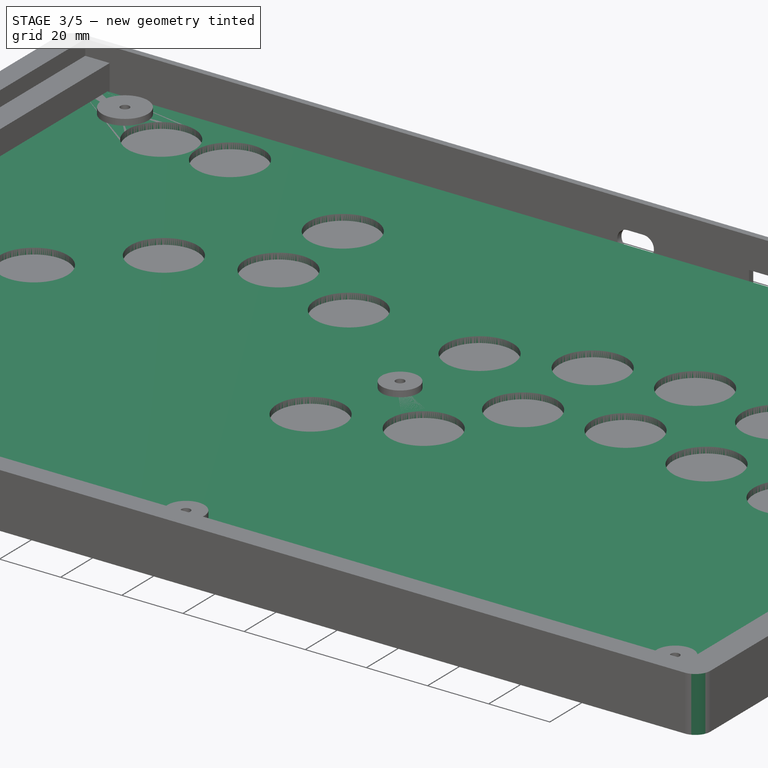
[diagram: stage 3 of 5 — iso view after this stage's code; geometry added in this stage tinted green]
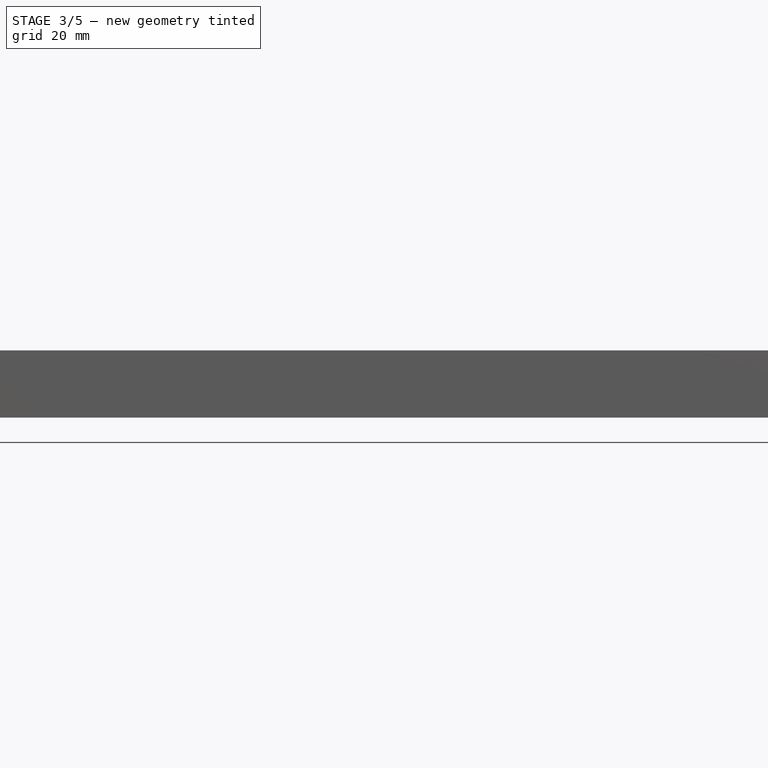
[diagram: stage 3 of 5 — front view after this stage's code; geometry added in this stage tinted green]
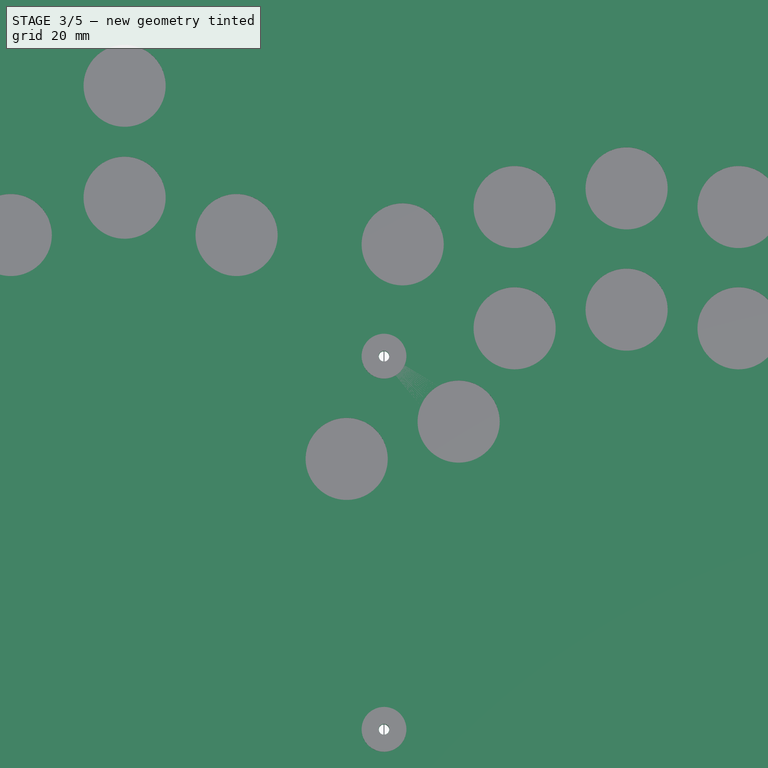
[diagram: stage 3 of 5 — top view after this stage's code; geometry added in this stage tinted green]
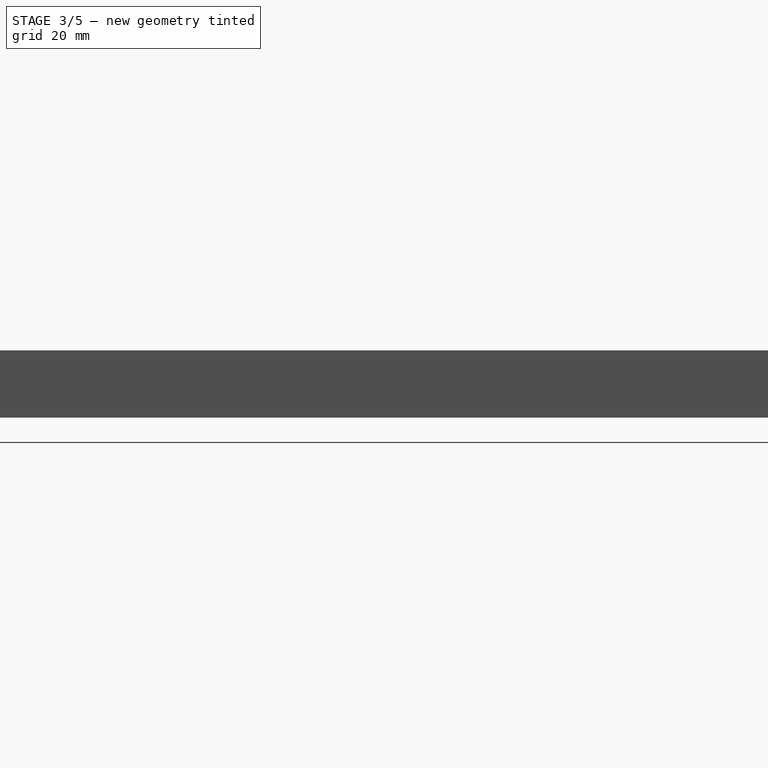
[diagram: stage 3 of 5 — right view after this stage's code; geometry added in this stage tinted green]
FEATURE [Sketcher::SketchObject] Sketch007
  FullyConstrained = true
  MapMode = 5
  Support = -> [XY_Plane012]
  expr: Constraints[15] = Spreadsheet.ceil_height - Spreadsheet.ceil_margin * 2
  expr: Constraints[16] = Spreadsheet.ceil_width / 2 - Spreadsheet.ceil_margin
  expr: Constraints[18] = Spreadsheet.ceil_margin
  sketch-geometry (8):
    g0: LineSegment StartX=-176 StartY=-1 StartZ=0 EndX=176 EndY=-1 EndZ=0
    g1: LineSegment StartX=179 StartY=-4 StartZ=0 EndX=179 EndY=-225 EndZ=0
    g2: LineSegment StartX=176 StartY=-228 StartZ=0 EndX=-176 EndY=-228 EndZ=0
    g3: LineSegment StartX=-179 StartY=-225 StartZ=0 EndX=-179 EndY=-4 EndZ=0
    g4: ArcOfCircle CenterX=-176 CenterY=-4 CenterZ=0 NormalX=0 NormalY=0 NormalZ=1 AngleXU=0 Radius=3 StartAngle=1.5708 EndAngle=3.14159
    g5: ArcOfCircle CenterX=-176 CenterY=-225 CenterZ=0 NormalX=0 NormalY=0 NormalZ=1 AngleXU=0 Radius=3 StartAngle=3.14159 EndAngle=4.71239
    g6: ArcOfCircle CenterX=176 CenterY=-225 CenterZ=0 NormalX=0 NormalY=0 NormalZ=1 AngleXU=0 Radius=3 StartAngle=4.71239 EndAngle=6.28319
    g7: ArcOfCircle CenterX=176 CenterY=-4 CenterZ=0 NormalX=0 NormalY=0 NormalZ=1 AngleXU=0 Radius=3 StartAngle=1.6e-15 EndAngle=1.5708
  constraints (19):
    c: Horizontal(g0)
    c: Horizontal(g2)
    c: Vertical(g1)
    c: Vertical(g3)
    c: Tangent(g3,g4) = 1.5708
    c: Tangent(g0,g4) = 1.5708
    c: Tangent(g3,g5) = 1.5708
    c: Tangent(g2,g5) = 1.5708
    c: Tangent(g2,g6) = 1.5708
    c: Tangent(g1,g6) = 1.5708
    c: Tangent(g0,g7) = 1.5708
    c: Tangent(g1,g7) = 1.5708
    c: Radius(g7) = 3
    c: Equal(g4,g5)
    c: Equal(g5,g6)
    c: Distance(g-1,g2) = 228
    c: Distance(g-1,g3) = 179
    c: Symmetric(g3,g1,g-2)
    c: Distance(g-1,g0) = 1
FEATURE [PartDesign::Pad] Pad002  label="CeilPad"
  Direction = (0,0,1)
  Length = 5
  Length2 = 10
  Profile = -> Sketch007
  ReferenceAxis = -> Sketch007 [N_Axis]
  Type = 0
  expr: Length = Spreadsheet.ceil_thickness
FEATURE [Sketcher::SketchObject] Sketch008  label="CeilSwitchHolesSketch"
  FullyConstrained = true
  MapMode = 5
  Support = -> [XY_Plane012]
  expr: Constraints[0] = Spreadsheet.switch_phi
  sketch-geometry (23):
    g0: Circle CenterX=-142.75 CenterY=-17.7 CenterZ=0 NormalX=0 NormalY=0 NormalZ=1 AngleXU=0 Radius=11
    g1: Circle CenterX=-120.25 CenterY=-17.7 CenterZ=0 NormalX=0 NormalY=0 NormalZ=1 AngleXU=0 Radius=11
    g2: LineSegment StartX=-142.75 StartY=-28.7 StartZ=0 EndX=-142.75 EndY=-6.7 EndZ=0
    g3: LineSegment StartX=-142.75 StartY=-6.7 StartZ=0 EndX=-120.25 EndY=-6.7 EndZ=0
    g4: LineSegment StartX=-120.25 StartY=-6.7 StartZ=0 EndX=-120.25 EndY=-28.7 EndZ=0
    g5: LineSegment StartX=-120.25 StartY=-28.7 StartZ=0 EndX=-142.75 EndY=-28.7 EndZ=0
    g6: GeomPoint X=-131.5 Y=-17.7 Z=0
    g7: Circle CenterX=-69.5 CenterY=-37.5 CenterZ=0 NormalX=0 NormalY=0 NormalZ=1 AngleXU=0 Radius=11
    g8: Circle CenterX=-69.5 CenterY=-67.5 CenterZ=0 NormalX=0 NormalY=0 NormalZ=1 AngleXU=0 Radius=11
    g9: Circle CenterX=-100 CenterY=-77.5 CenterZ=0 NormalX=0 NormalY=0 NormalZ=1 AngleXU=0 Radius=11
    g10: Circle CenterX=-125 CenterY=-102.5 CenterZ=0 NormalX=0 NormalY=0 NormalZ=1 AngleXU=0 Radius=11
    g11: Circle CenterX=-39.5 CenterY=-77.5 CenterZ=0 NormalX=0 NormalY=0 NormalZ=1 AngleXU=0 Radius=11
    g12: Circle CenterX=5 CenterY=-80 CenterZ=0 NormalX=0 NormalY=0 NormalZ=1 AngleXU=0 Radius=11
    g13: Circle CenterX=35 CenterY=-70 CenterZ=0 NormalX=0 NormalY=0 NormalZ=1 AngleXU=0 Radius=11
    g14: Circle CenterX=65 CenterY=-65 CenterZ=0 NormalX=0 NormalY=0 NormalZ=1 AngleXU=0 Radius=11
    g15: Circle CenterX=95 CenterY=-70 CenterZ=0 NormalX=0 NormalY=0 NormalZ=1 AngleXU=0 Radius=11
    g16: Circle CenterX=125 CenterY=-75 CenterZ=0 NormalX=0 NormalY=0 NormalZ=1 AngleXU=0 Radius=11
    g17: Circle CenterX=-10 CenterY=-137.5 CenterZ=0 NormalX=0 NormalY=0 NormalZ=1 AngleXU=0 Radius=11
    g18: Circle CenterX=20 CenterY=-127.5 CenterZ=0 NormalX=0 NormalY=0 NormalZ=1 AngleXU=0 Radius=11
    g19: Circle CenterX=35 CenterY=-102.5 CenterZ=0 NormalX=0 NormalY=0 NormalZ=1 AngleXU=0 Radius=11
    g20: Circle CenterX=65 CenterY=-97.5 CenterZ=0 NormalX=0 NormalY=0 NormalZ=1 AngleXU=0 Radius=11
    g21: Circle CenterX=95 CenterY=-102.5 CenterZ=0 NormalX=0 NormalY=0 NormalZ=1 AngleXU=0 Radius=11
    g22: Circle CenterX=125 CenterY=-107.5 CenterZ=0 NormalX=0 NormalY=0 NormalZ=1 AngleXU=0 Radius=11
  constraints (66):
    c: Diameter(g0) = 22
    c: DistanceY(g0) = -17.7
    c: DistanceX(g0) = -142.75
    c: Equal(g0,g1) = 22
    c: Horizontal(g1,g0)
    c: DistanceX(g1) = -120.25
    c: Coincident(g2,g3)
    c: Coincident(g3,g4)
    c: Coincident(g4,g5)
    c: Coincident(g5,g2)
    c: Horizontal(g3)
    c: Horizontal(g5)
    c: Vertical(g2)
    c: Vertical(g4)
    c: Symmetric(g3,g2,g6)
    c: Symmetric(g1,g0,g6)
    c: PointOnObject(g3,g1)
    c: PointOnObject(g0,g2)
    c: Vertical(g8,g7)
    c: DistanceX(g7) = -69.5
    c: DistanceY(g7) = -37.5
    c: DistanceY(g8) = -67.5
    c: Equal(g8,g7)
    c: Equal(g7,g9)
    c: Equal(g9,g10)
    c: Equal(g10,g11)
    c: Equal(g11,g1)
    c: DistanceY(g10) = -102.5
    c: DistanceX(g10) = -125
    c: DistanceX(g9) = -100
    c: DistanceY(g9) = -77.5
    c: DistanceX(g11) = -39.5
    c: DistanceY(g11) = -77.5
    c: DistanceX(g17) = -10
    c: DistanceY(g17) = -137.5
    c: DistanceY(g18) = -127.5
    c: DistanceX(g18) = 20
    c: Equal(g17,g18)
    c: Equal(g18,g12)
    c: Equal(g12,g13)
    c: Equal(g13,g14)
    c: Equal(g14,g19)
    c: Equal(g19,g20)
    c: Equal(g20,g21)
    c: Equal(g21,g15)
    c: Equal(g15,g16)
    c: Equal(g16,g22)
    c: Equal(g22,g11)
    c: DistanceX(g19) = 35
    c: DistanceY(g19) = -102.5
    c: DistanceX(g20) = 65
    c: DistanceY(g20) = -97.5
    c: DistanceX(g13) = 35
    c: DistanceY(g13) = -70
    c: DistanceX(g12) = 5
    c: DistanceY(g12) = -80
    c: DistanceX(g14) = 65
    c: DistanceY(g14) = -65
    c: DistanceX(g15) = 95
    c: DistanceY(g15) = -70
    c: DistanceX(g21) = 95
    c: DistanceY(g21) = -102.5
    c: DistanceY(g16) = -75
    c: DistanceX(g16) = 125
    c: DistanceX(g22) = 125
    c: DistanceY(g22) = -107.5
FEATURE [Sketcher::SketchObject] Sketch009  label="CeilScrewHolesSketch"
  FullyConstrained = true
  MapMode = 5
  Support = -> [XY_Plane012]
  expr: Constraints[3] = Spreadsheet.M2_5_head_phi
  sketch-geometry (6):
    g0: Circle CenterX=0 CenterY=-210 CenterZ=0 NormalX=0 NormalY=0 NormalZ=1 AngleXU=0 Radius=3.25
    g1: Circle CenterX=160 CenterY=-210 CenterZ=0 NormalX=0 NormalY=0 NormalZ=1 AngleXU=0 Radius=3.25
    g2: Circle CenterX=160 CenterY=-10 CenterZ=0 NormalX=0 NormalY=0 NormalZ=1 AngleXU=0 Radius=3.25
    g3: Circle CenterX=-160 CenterY=-210 CenterZ=0 NormalX=0 NormalY=0 NormalZ=1 AngleXU=0 Radius=2.5
    g4: Circle CenterX=-160 CenterY=-10 CenterZ=0 NormalX=0 NormalY=0 NormalZ=1 AngleXU=0 Radius=2.5
    g5: Circle CenterX=0 CenterY=-110 CenterZ=0 NormalX=0 NormalY=0 NormalZ=1 AngleXU=0 Radius=3.25
  constraints (18):
    c: DistanceY(g0) = -210
    c: DistanceX(g1) = 160
    c: Horizontal(g1,g0)
    c: Diameter(g1) = 6.5
    c: Equal(g1,g2) = 5
    c: Vertical(g2,g1)
    c: DistanceY(g2) = -10
    c: Diameter(g3) = 5
    c: Equal(g3,g4) = 5
    c: DistanceX(g3) = -160
    c: Horizontal(g4,g2)
    c: Horizontal(g3,g1)
    c: Vertical(g4,g3)
    c: PointOnObject(g0,g-2)
    c: Equal(g0,g1)
    c: PointOnObject(g5,g-2)
    c: Equal(g5,g0)
    c: DistanceY(g5) = -110
FEATURE [PartDesign::Hole] Hole001
  BaseFeature = -> Pad002
  CustomThreadClearance = 0
  Depth = 5
  DepthType = 0
  Diameter = 22
  DrillForDepth = false
  DrillPoint = 0
  DrillPointAngle = 118
  HoleCutCountersinkAngle = 90
  HoleCutCustomValues = false
  HoleCutDepth = 0
  HoleCutDiameter = 0
  HoleCutType = 0
  ModelThread = false
  Profile = -> Sketch008
  Reversed = true
  Tapered = false
  TaperedAngle = 90
  ThreadClass = 0
  ThreadDepth = 5
  ThreadDepthType = 0
  ThreadDirection = 0
  ThreadFit = 0
  ThreadSize = 0
  ThreadType = 0
  Threaded = false
  UseCustomThreadClearance = false
  expr: Depth = Spreadsheet.ceil_thickness
  expr: Diameter = Spreadsheet.switch_phi
FEATURE [PartDesign::Hole] Hole002
  BaseFeature = -> Hole001
  CustomThreadClearance = 0
  Depth = 5
  DepthType = 0
  Diameter = 2.8
  DrillForDepth = false
  DrillPoint = 0
  DrillPointAngle = 118
  HoleCutCountersinkAngle = 90
  HoleCutCustomValues = false
  HoleCutDepth = 0
  HoleCutDiameter = 6.1
  HoleCutType = 0
  ModelThread = false
  Profile = -> Sketch009
  Reversed = true
  Tapered = false
  TaperedAngle = 90
  ThreadClass = 0
  ThreadDepth = 5
  ThreadDepthType = 0
  ThreadDirection = 0
  ThreadFit = 0
  ThreadSize = 0
  ThreadType = 0
  Threaded = false
  UseCustomThreadClearance = false
  expr: Depth = Spreadsheet.ceil_thickness
  expr: Diameter = Spreadsheet.M2_5_hole_phi
FEATURE [PartDesign::Fillet] Fillet
  Base = -> Hole004 [Edge1,Edge17,Edge4,Edge36]
  BaseFeature = -> Hole004
  Radius = 5
  SupportTransform = false
  UseAllEdges = false
FEATURE [PartDesign::Body] Body
  Group = -> [Sketch,Pad,Sketch001,Pocket,Sketch002,Pad001,Sketch003,Hole,Sketch004,Pocket001,Sketch005,Pocket002,Sketch006,Pocket003,Sketch011,Hole004,Fillet]
  Origin = -> Origin
  Tip = -> Fillet
FEATURE [App::Part] Assembly
  AssemblyType = Part::Link
  Group = -> [LCS_Origin,Constraints,Variables,Configurations,Body001,Body]
  Origin = -> Origin014
  Type = Assembly
FEATURE [App::MeasureDistance] Distance001  label="Distance: 1.18 mm"
  Distance = 1.17615
  P1 = (0.850666,-111.19,7)
  P2 = (1.31324,-112.271,7)
FEATURE [App::MeasureDistance] Distance002  label="Distance: 1.01 mm"
  Distance = 1.00943
  P1 = (166.008,-237,1.99829)
  P2 = (166.011,-237,3.00771)
FEATURE [App::MeasureDistance] Distance003  label="Distance: 6.05 mm"
  Distance = 6.04636
  P1 = (-158.716,-210.674,7)
  P2 = (-152.853,-212.151,7)
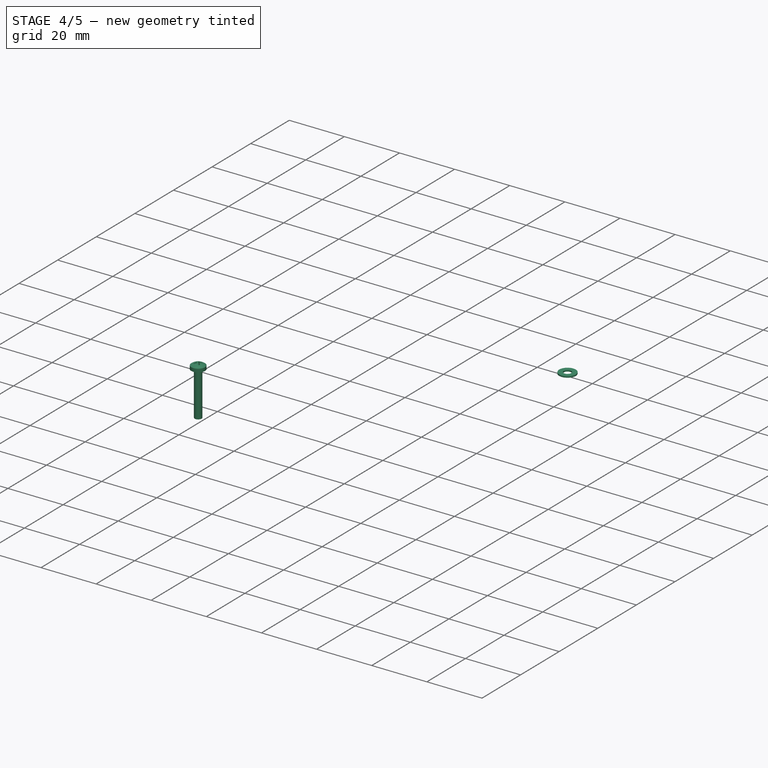
[diagram: stage 4 of 5 — iso view after this stage's code; geometry added in this stage tinted green]
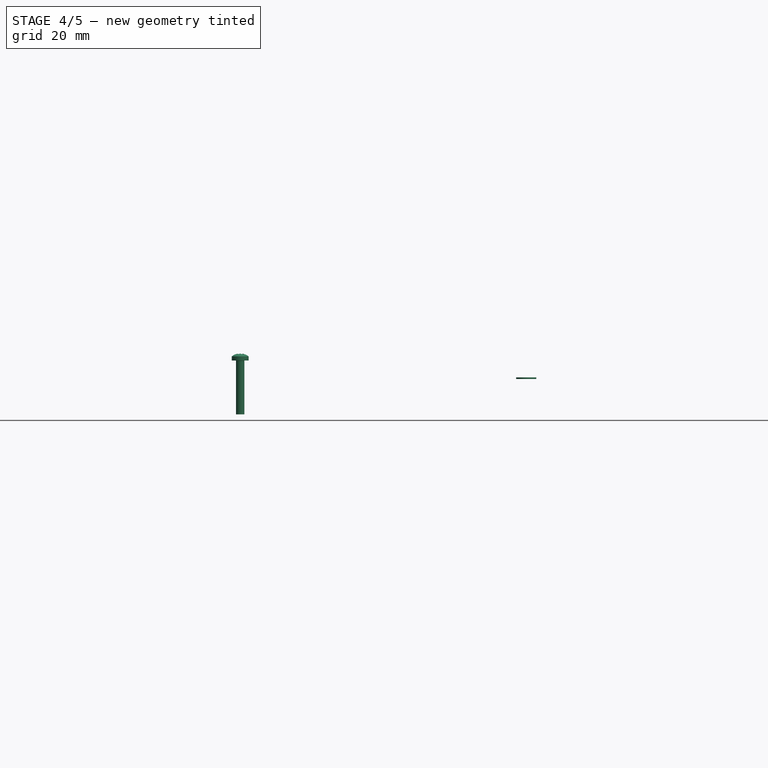
[diagram: stage 4 of 5 — front view after this stage's code; geometry added in this stage tinted green]
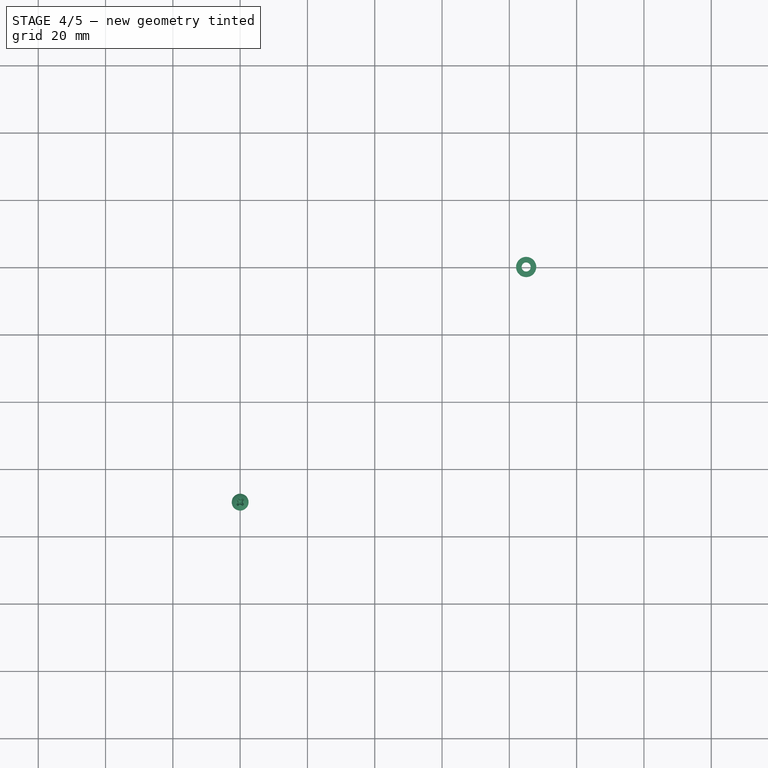
[diagram: stage 4 of 5 — top view after this stage's code; geometry added in this stage tinted green]
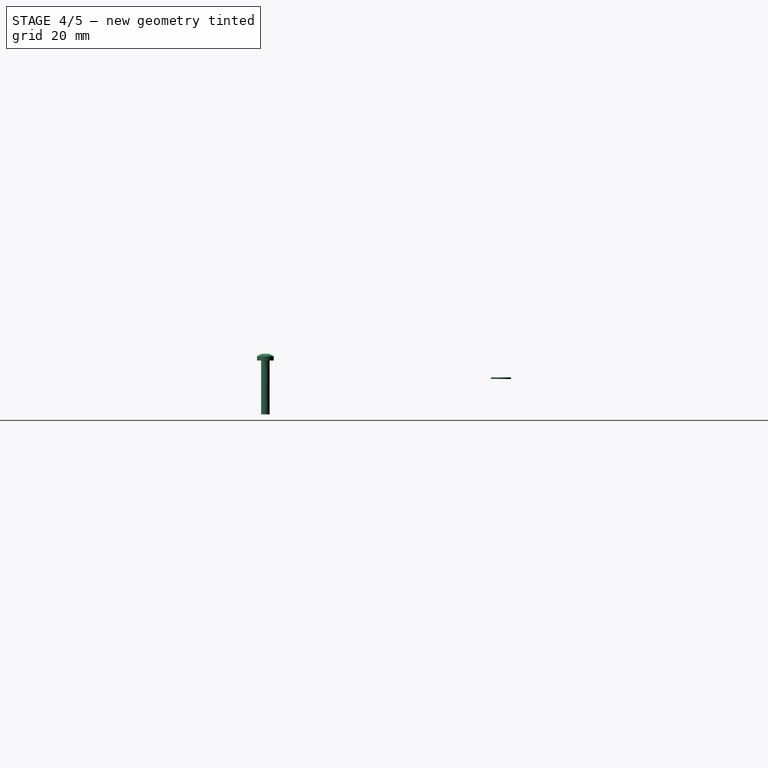
[diagram: stage 4 of 5 — right view after this stage's code; geometry added in this stage tinted green]
FEATURE [Sketcher::SketchObject] Sketch010  label="CeilCenterScrewHolesSketch"
  AttachmentOffset = pos=(0,0,5) rot=(0,0,1;3.14159rad)
  FullyConstrained = true
  MapMode = 5
  Placement = pos=(0,0,5) rot=(0,0,1;3.14159rad)
  Support = -> [XY_Plane012]
  expr: .AttachmentOffset.Base.z = Spreadsheet.ceil_thickness
  expr: Constraints[2] = Spreadsheet.M2_5_head_phi
  sketch-geometry (1):
    g0: Circle CenterX=0 CenterY=110 CenterZ=0 NormalX=0 NormalY=0 NormalZ=1 AngleXU=0 Radius=3.25
  constraints (3):
    c: PointOnObject(g0,g-2)
    c: DistanceY(g0) = 110
    c: Diameter(g0) = 6.5
FEATURE [PartDesign::Hole] Hole003
  BaseFeature = -> Hole002
  CustomThreadClearance = 0
  Depth = 1.7
  DepthType = 0
  Diameter = 6.5
  DrillForDepth = false
  DrillPoint = 0
  DrillPointAngle = 118
  HoleCutCountersinkAngle = 90
  HoleCutCustomValues = false
  HoleCutDepth = 0
  HoleCutDiameter = 0
  HoleCutType = 0
  ModelThread = false
  Profile = -> Sketch010
  Tapered = false
  TaperedAngle = 90
  ThreadClass = 0
  ThreadDepth = 1.7
  ThreadDepthType = 0
  ThreadDirection = 0
  ThreadFit = 0
  ThreadSize = 0
  ThreadType = 0
  Threaded = false
  UseCustomThreadClearance = false
  expr: Depth = 1.7 mm
  expr: Diameter = Spreadsheet.M2_5_head_phi
FEATURE [Part::FeaturePython] Washer  label="M2.5-Washer"  # Fasteners workbench fastener (typed FeaturePython)
  Placement = pos=(-75,-140,13) rot=(0,0,1;0rad)
  baseObject = -> Board_f4e1 [Board_Geoms_f4e1.Pcb_f4e1.Edge18]
  diameter = 3
  invert = true
  matchOuter = false
  offset = 0
  type = 8
FEATURE [App::MeasureDistance] Distance  label="Distance: 5.00 mm"
  Distance = 5.00291
  P1 = (-170,-145.1,8)
  P2 = (-170,-144.929,13)
FEATURE [Part::FeaturePython] Washer002  label="M2.5-Washer034"  # Fasteners workbench fastener (typed FeaturePython)
  Placement = pos=(-160,-210,18.01) rot=(0,0,1;0rad)
  baseObject = -> Assembly [Body001.Hole003.Edge45]
  diameter = 3
  invert = true
  matchOuter = false
  offset = 0
  type = 8
FEATURE [Part::FeaturePython] Screw003  label="M2.5x16-Screw001"  # Fasteners workbench fastener (typed FeaturePython)
  Placement = pos=(-160,-210,18.51) rot=(0,0,1;0rad)
  baseObject = -> Washer002 [Edge1]
  diameter = 3
  invert = false
  leftHanded = false
  length = 11
  lengthCustom = 16
  matchOuter = false
  offset = 0
  thread = false
  type = 76
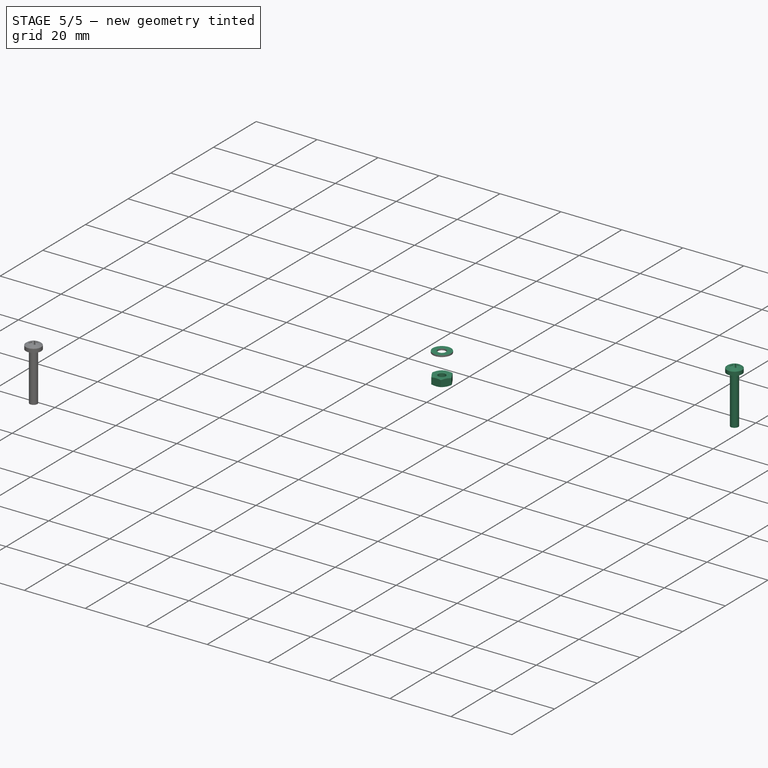
[diagram: stage 5 of 5 — iso view after this stage's code; geometry added in this stage tinted green]
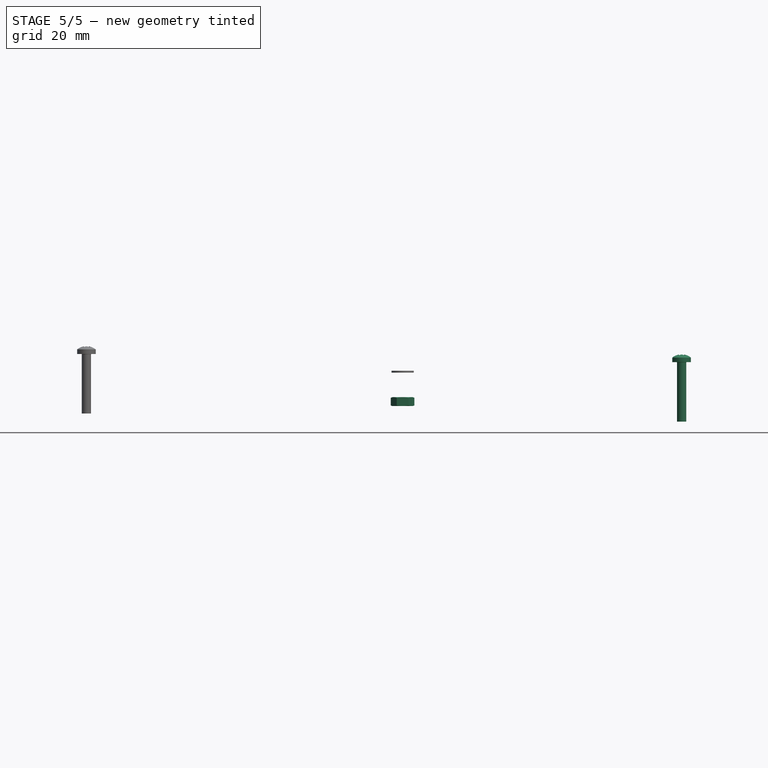
[diagram: stage 5 of 5 — front view after this stage's code; geometry added in this stage tinted green]
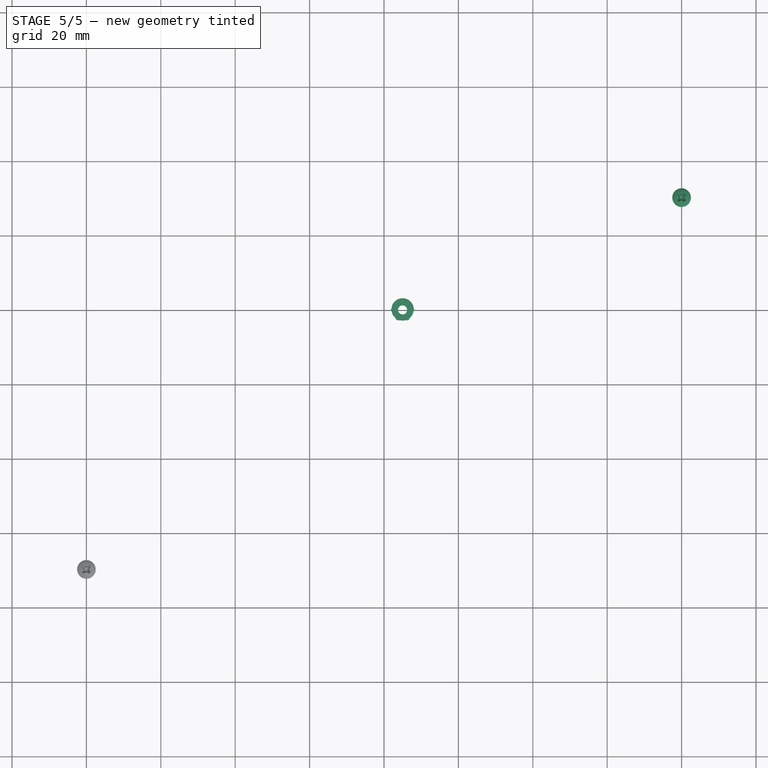
[diagram: stage 5 of 5 — top view after this stage's code; geometry added in this stage tinted green]
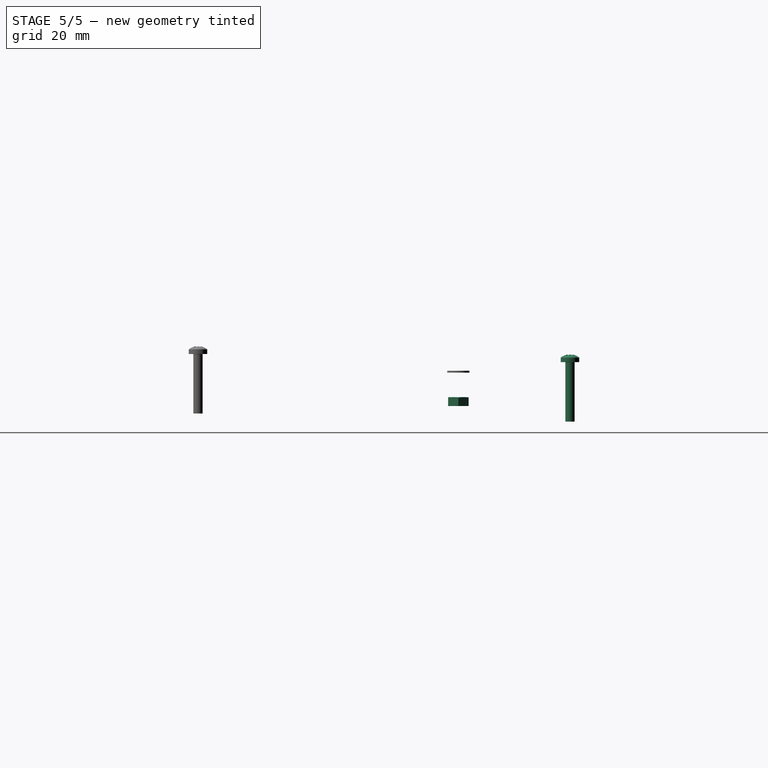
[diagram: stage 5 of 5 — right view after this stage's code; geometry added in this stage tinted green]
FEATURE [PartDesign::Body] Body001  label="CeilBody"
  Group = -> [Sketch007,Pad002,Sketch008,Sketch009,Hole001,Hole002,Sketch010,Hole003]
  Origin = -> Origin012
  Placement = pos=(0,0,13.01) rot=(0,0,1;0rad)
  Tip = -> Hole003
  expr: .Placement.Base.z = Spreadsheet.box_thickness - Spreadsheet.ceil_thickness + 0.01 mm
FEATURE [App::Part] Part
  Origin = -> Origin013
FEATURE [App::DocumentObjectGroup] Parts
  Group = -> [Board_1531,Board_f4e1,Part]
FEATURE [PartDesign::CoordinateSystem] LCS_Origin
  AttacherType = Attacher::AttachEngine3D
  MapMode = 2
  Support = -> [X_Axis014]
FEATURE [App::DocumentObjectGroup] Constraints
FEATURE [App::FeaturePython] Variables  # WARN: FeaturePython — macro-defined, semantics opaque (R4)
  Type = App::PropertyContainer
FEATURE [App::DocumentObjectGroup] Configurations
FEATURE [Part::FeaturePython] Screw  label="M2.5x16-Screw"  # Fasteners workbench fastener (typed FeaturePython)
  Placement = pos=(0,-110,16.31) rot=(0,0,1;0rad)
  baseObject = -> Assembly [Body001.Hole003.Edge77]
  diameter = 3
  invert = false
  leftHanded = false
  length = 11
  lengthCustom = 16
  matchOuter = false
  offset = 0
  thread = false
  type = 76
  expr: lengthCustom = 16 mm
FEATURE [Part::FeaturePython] Washer001  label="M2.5-Washer033"  # Fasteners workbench fastener (typed FeaturePython)
  Placement = pos=(-75,-140,13.5) rot=(0,0,1;0rad)
  baseObject = -> Washer [Edge1]
  diameter = 3
  invert = false
  matchOuter = false
  offset = 0
  type = 8
FEATURE [Part::FeaturePython] Screw002  label="M2.5x10-Screw"  # Fasteners workbench fastener (typed FeaturePython)
  Placement = pos=(-75,-140,13.5) rot=(0,0,1;0rad)
  baseObject = -> Washer [Edge1]
  diameter = 3
  invert = false
  leftHanded = false
  length = 11
  lengthCustom = 10
  matchOuter = false
  offset = 0
  thread = false
  type = 76
FEATURE [Part::FeaturePython] Nut  label="M3-Nut"  # Fasteners workbench fastener (typed FeaturePython)
  Placement = pos=(-75,-140,4.5) rot=(0,0,1;0rad)
  baseObject = -> Screw002 [Edge70]
  diameter = 7
  invert = false
  leftHanded = false
  matchOuter = false
  offset = 1
  thread = false
  type = 19
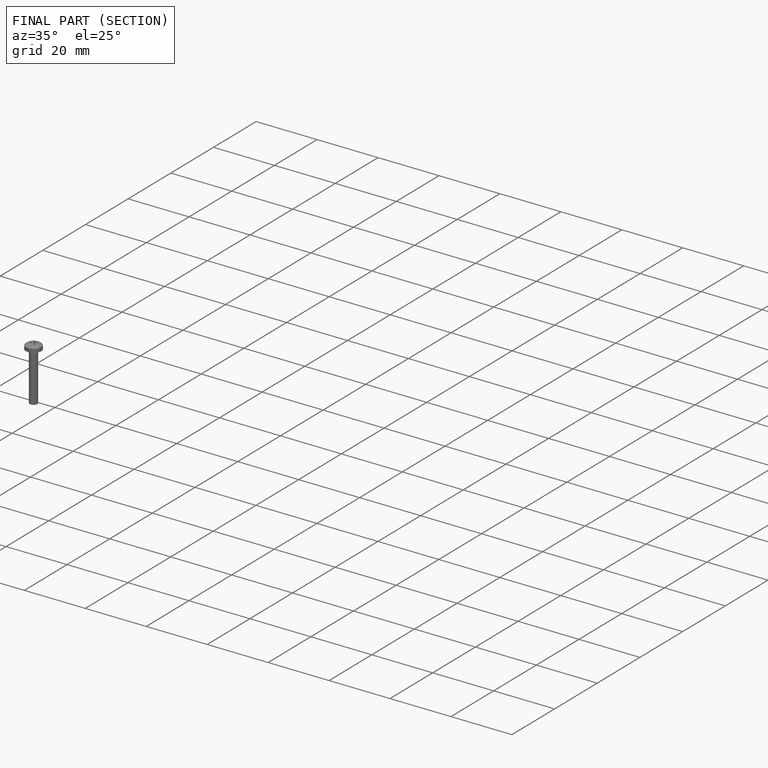
[diagram: finished part — half-section view (interior)]
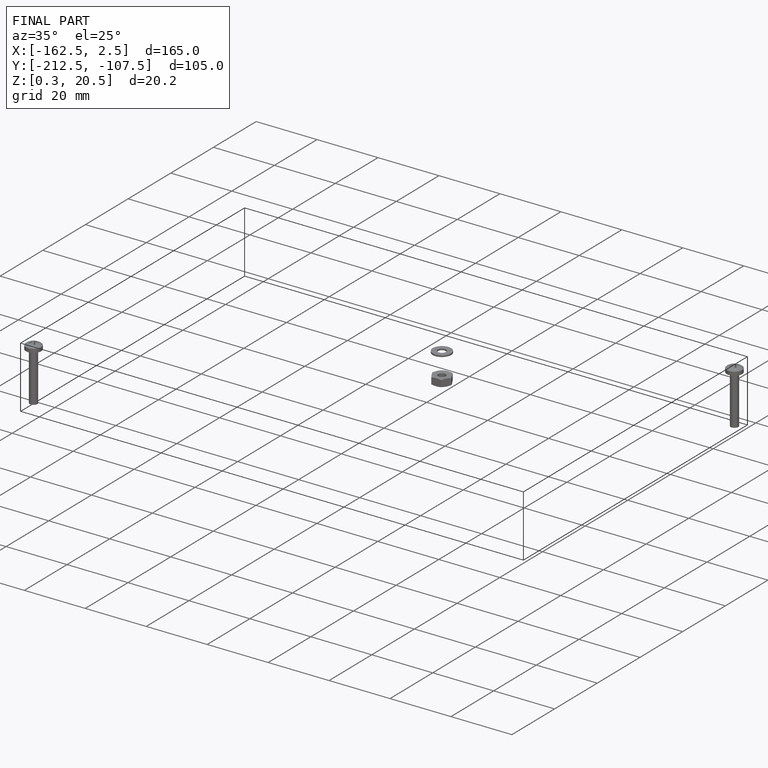
[diagram: finished part — iso view with bounding-box wireframe]
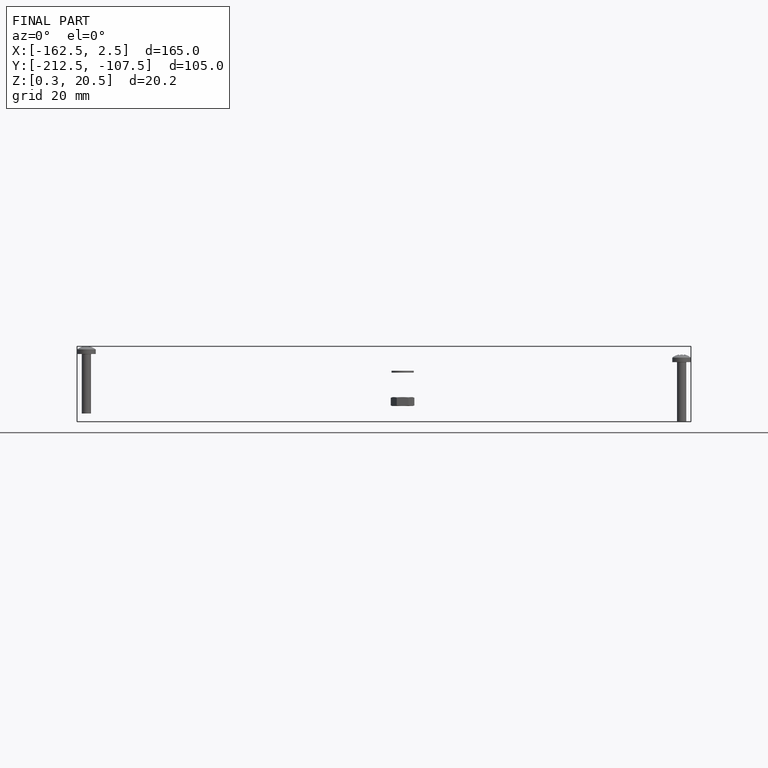
[diagram: finished part — front view with bounding-box wireframe]
